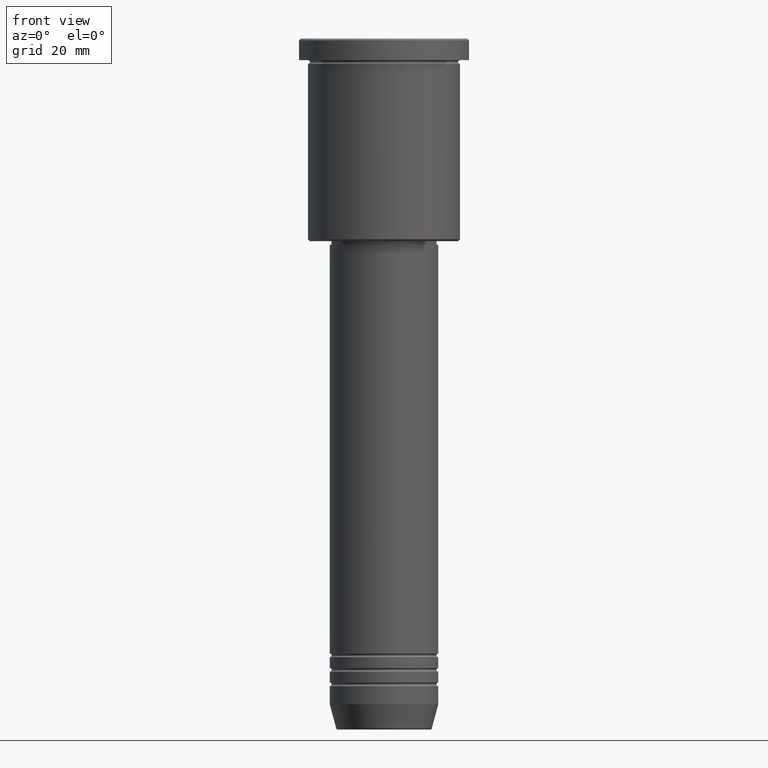
[diagram: clean part render]
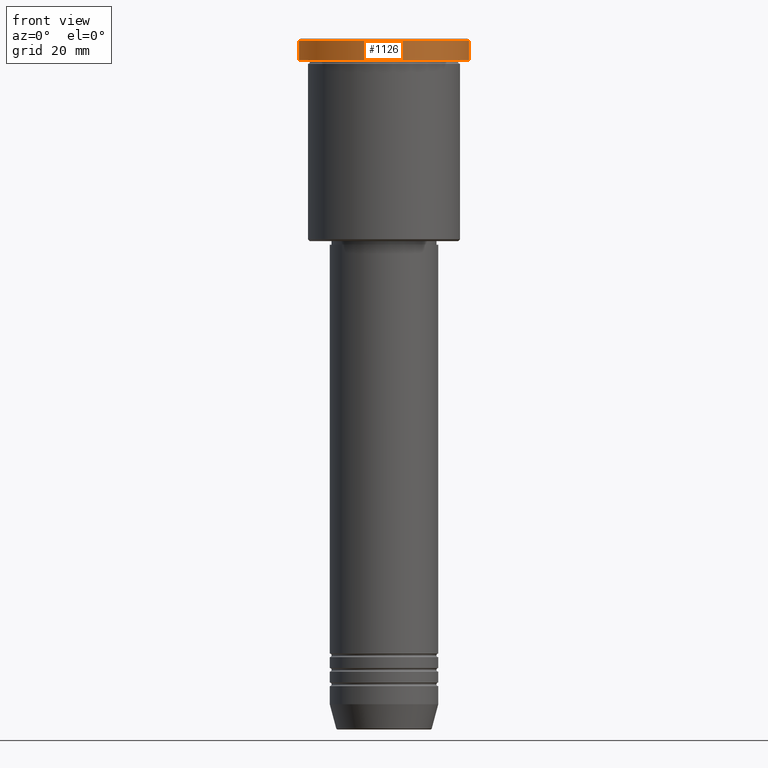
[diagram: same view with one face highlighted and labeled with its STEP entity id]
A machine part, front view. The second image highlights one B-rep face of the part: STEP entity #1126.
In plain terms, the highlighted cylindrical surface (partial cylindrical patch) has radius 23.5 mm, axis along (-0, -0, 1).
Its self-contained STEP definition (entity closure, byte-faithful):
#57 = VERTEX_POINT ( 'NONE', #123 ) ;
#79 = LINE ( 'NONE', #1063, #291 ) ;
#88 = LINE ( 'NONE', #1093, #443 ) ;
#89 = EDGE_CURVE ( 'NONE', #318, #57, #88, .T. ) ;
#95 = AXIS2_PLACEMENT_3D ( 'NONE', #401, #490, #934 ) ;
#123 = CARTESIAN_POINT ( 'NONE',  ( 23.50000000000000000, 0.000000000000000000, -0.5000000000000281997 ) ) ;
#207 = EDGE_CURVE ( 'NONE', #57, #902, #1128, .T. ) ;
#281 = ORIENTED_EDGE ( 'NONE', *, *, #89, .T. ) ;
#291 = VECTOR ( 'NONE', #1161, 1000.000000000000000 ) ;
#300 = DIRECTION ( 'NONE',  ( -0.000000000000000000, -0.000000000000000000, 1.000000000000000000 ) ) ;
#318 = VERTEX_POINT ( 'NONE', #378 ) ;
#328 = AXIS2_PLACEMENT_3D ( 'NONE', #768, #1133, #1143 ) ;
#367 = VERTEX_POINT ( 'NONE', #889 ) ;
#378 = CARTESIAN_POINT ( 'NONE',  ( 23.50000000000000000, 0.000000000000000000, -5.999999999999993783 ) ) ;
#386 = CARTESIAN_POINT ( 'NONE',  ( 0.000000000000000000, 0.000000000000000000, -5.999999999999993783 ) ) ;
#401 = CARTESIAN_POINT ( 'NONE',  ( 0.000000000000000000, 0.000000000000000000, -0.5000000000000281997 ) ) ;
#443 = VECTOR ( 'NONE', #811, 1000.000000000000000 ) ;
#450 = ORIENTED_EDGE ( 'NONE', *, *, #1180, .F. ) ;
#490 = DIRECTION ( 'NONE',  ( 0.000000000000000000, 0.000000000000000000, -1.000000000000000000 ) ) ;
#503 = CYLINDRICAL_SURFACE ( 'NONE', #328, 23.50000000000000000 ) ;
#606 = FACE_OUTER_BOUND ( 'NONE', #1091, .T. ) ;
#768 = CARTESIAN_POINT ( 'NONE',  ( 0.000000000000000000, 0.000000000000000000, 0.000000000000000000 ) ) ;
#811 = DIRECTION ( 'NONE',  ( -0.000000000000000000, -0.000000000000000000, 1.000000000000000000 ) ) ;
#868 = AXIS2_PLACEMENT_3D ( 'NONE', #386, #300, #1094 ) ;
#889 = CARTESIAN_POINT ( 'NONE',  ( -23.50000000000000000, 2.877919977996280320E-15, -5.999999999999993783 ) ) ;
#902 = VERTEX_POINT ( 'NONE', #1134 ) ;
#908 = CIRCLE ( 'NONE', #868, 23.50000000000000000 ) ;
#934 = DIRECTION ( 'NONE',  ( 1.000000000000000000, 0.000000000000000000, 0.000000000000000000 ) ) ;
#953 = EDGE_CURVE ( 'NONE', #367, #318, #908, .T. ) ;
#1052 = ORIENTED_EDGE ( 'NONE', *, *, #953, .T. ) ;
#1063 = CARTESIAN_POINT ( 'NONE',  ( -23.50000000000000000, 2.877919977996280320E-15, 0.000000000000000000 ) ) ;
#1091 = EDGE_LOOP ( 'NONE', ( #450, #1052, #281, #1176 ) ) ;
#1093 = CARTESIAN_POINT ( 'NONE',  ( 23.50000000000000000, 0.000000000000000000, 0.000000000000000000 ) ) ;
#1094 = DIRECTION ( 'NONE',  ( 1.000000000000000000, 0.000000000000000000, 0.000000000000000000 ) ) ;
#1126 = ADVANCED_FACE ( 'NONE', ( #606 ), #503, .T. ) ;
#1128 = CIRCLE ( 'NONE', #95, 23.50000000000000000 ) ;
#1133 = DIRECTION ( 'NONE',  ( -0.000000000000000000, -0.000000000000000000, 1.000000000000000000 ) ) ;
#1134 = CARTESIAN_POINT ( 'NONE',  ( -23.50000000000000000, 2.877919977996280320E-15, -0.5000000000000281997 ) ) ;
#1143 = DIRECTION ( 'NONE',  ( 1.000000000000000000, 0.000000000000000000, 0.000000000000000000 ) ) ;
#1161 = DIRECTION ( 'NONE',  ( -0.000000000000000000, -0.000000000000000000, 1.000000000000000000 ) ) ;
#1176 = ORIENTED_EDGE ( 'NONE', *, *, #207, .T. ) ;
#1180 = EDGE_CURVE ( 'NONE', #367, #902, #79, .T. ) ;